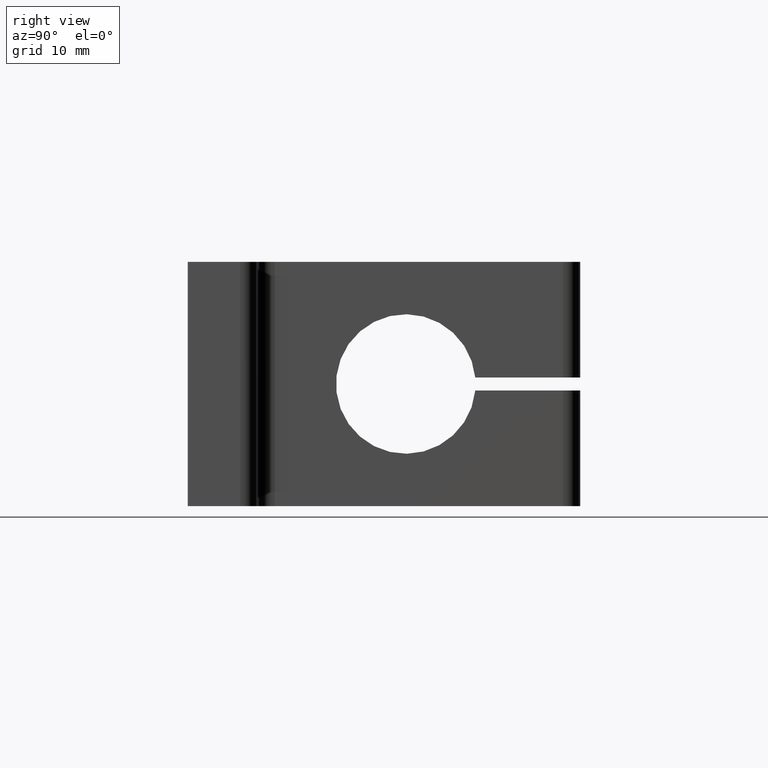
[diagram: clean part render]
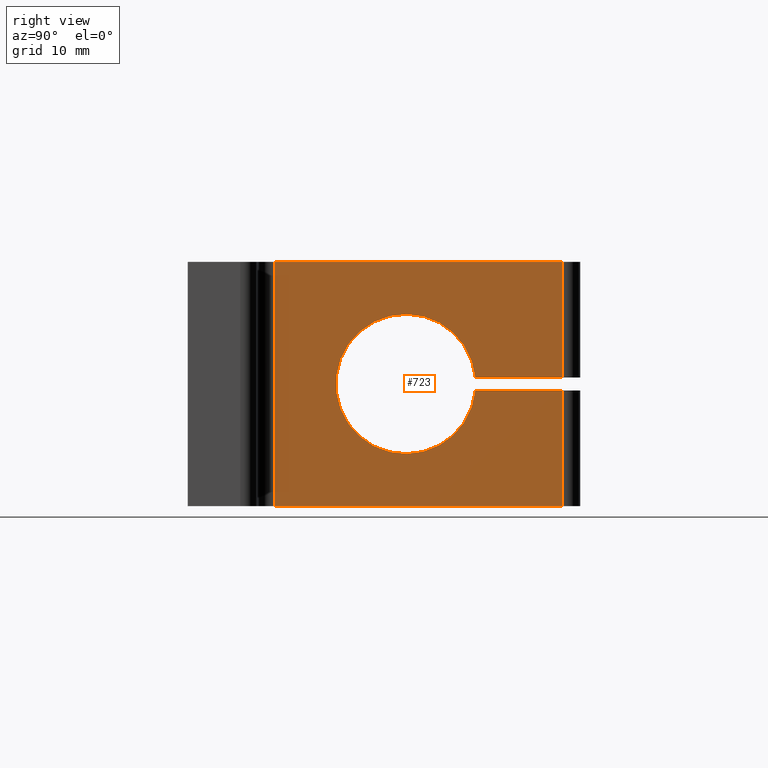
[diagram: same view with one face highlighted and labeled with its STEP entity id]
A machine part, right view. The second image highlights one B-rep face of the part: STEP entity #723.
In plain terms, the highlighted planar face has unit normal (-1, -0, 0).
Its self-contained STEP definition (entity closure, byte-faithful):
#6 = CARTESIAN_POINT ( 'NONE',  ( -17.50000000000000000, 32.96476616103699100, -13.25000000000000000 ) ) ;
#18 = CARTESIAN_POINT ( 'NONE',  ( -17.49999999999999600, 9.999999999999987600, -28.00000000000000000 ) ) ;
#26 = DIRECTION ( 'NONE',  ( 0.0000000000000000000, 1.000000000000000000, 0.0000000000000000000 ) ) ;
#37 = CARTESIAN_POINT ( 'NONE',  ( -17.50000000000000000, 44.99999999999999300, -28.00000000000000000 ) ) ;
#49 = DIRECTION ( 'NONE',  ( 9.376883653928687400E-017, -1.000000000000000000, 0.0000000000000000000 ) ) ;
#74 = CARTESIAN_POINT ( 'NONE',  ( -17.50000000000000000, 43.00000000000000000, -14.74999999999999800 ) ) ;
#84 = DIRECTION ( 'NONE',  ( 9.376883653928687400E-017, -1.000000000000000000, 0.0000000000000000000 ) ) ;
#95 = DIRECTION ( 'NONE',  ( 0.0000000000000000000, 0.0000000000000000000, 1.000000000000000000 ) ) ;
#98 = CARTESIAN_POINT ( 'NONE',  ( -17.50000000000000000, 43.00000000000000000, -28.00000000000000000 ) ) ;
#103 = DIRECTION ( 'NONE',  ( 9.376883653928687400E-017, -1.000000000000000000, 0.0000000000000000000 ) ) ;
#108 = PLANE ( 'NONE',  #561 ) ;
#110 = CARTESIAN_POINT ( 'NONE',  ( -17.50000000000000000, 44.99999999999999300, -28.00000000000000000 ) ) ;
#137 = CARTESIAN_POINT ( 'NONE',  ( -17.50000000000000000, 43.00000000000000000, 0.0000000000000000000 ) ) ;
#168 = VERTEX_POINT ( 'NONE', #6 ) ;
#177 = VERTEX_POINT ( 'NONE', #74 ) ;
#179 = VERTEX_POINT ( 'NONE', #137 ) ;
#189 = CARTESIAN_POINT ( 'NONE',  ( -17.49999999999999600, 9.999999999999987600, 0.0000000000000000000 ) ) ;
#192 = VERTEX_POINT ( 'NONE', #225 ) ;
#225 = CARTESIAN_POINT ( 'NONE',  ( -17.50000000000000000, 43.00000000000000000, -13.24999999999999800 ) ) ;
#231 = VERTEX_POINT ( 'NONE', #233 ) ;
#233 = CARTESIAN_POINT ( 'NONE',  ( -17.50000000000000000, 32.96476616103699100, -14.74999999999999800 ) ) ;
#258 = DIRECTION ( 'NONE',  ( -1.000000000000000000, -9.376883653928687400E-017, 0.0000000000000000000 ) ) ;
#262 = VERTEX_POINT ( 'NONE', #18 ) ;
#268 = CARTESIAN_POINT ( 'NONE',  ( -17.50000000000000000, 43.00000000000000000, -14.74999999999999800 ) ) ;
#278 = DIRECTION ( 'NONE',  ( 0.0000000000000000000, -1.000000000000000000, -1.303806837179633300E-016 ) ) ;
#288 = CARTESIAN_POINT ( 'NONE',  ( -17.50000000000000000, 45.00000000000000700, -14.74999999999999800 ) ) ;
#310 = CARTESIAN_POINT ( 'NONE',  ( -17.50000000000000000, 45.00000000000000700, -13.24999999999999800 ) ) ;
#365 = DIRECTION ( 'NONE',  ( 0.0000000000000000000, 0.0000000000000000000, 1.000000000000000000 ) ) ;
#371 = VERTEX_POINT ( 'NONE', #98 ) ;
#372 = VERTEX_POINT ( 'NONE', #189 ) ;
#376 = CARTESIAN_POINT ( 'NONE',  ( -17.49999999999999600, 9.999999999999991100, -28.00000000000000000 ) ) ;
#384 = CARTESIAN_POINT ( 'NONE',  ( -17.50000000000000000, 43.00000000000000000, 0.0000000000000000000 ) ) ;
#400 = DIRECTION ( 'NONE',  ( -0.0000000000000000000, 1.000000000000000000, 1.303806837179633300E-016 ) ) ;
#433 = CARTESIAN_POINT ( 'NONE',  ( -17.50000000000000000, 44.99999999999999300, 0.0000000000000000000 ) ) ;
#435 = DIRECTION ( 'NONE',  ( -0.0000000000000000000, -0.0000000000000000000, -1.000000000000000000 ) ) ;
#464 = DIRECTION ( 'NONE',  ( 1.000000000000000000, 9.376883653928687400E-017, 0.0000000000000000000 ) ) ;
#466 = CARTESIAN_POINT ( 'NONE',  ( -17.50000000000000000, 24.99999999999998900, -14.00000000000000000 ) ) ;
#561 = AXIS2_PLACEMENT_3D ( 'NONE', #37, #258, #103 ) ;
#618 = AXIS2_PLACEMENT_3D ( 'NONE', #466, #464, #26 ) ;
#641 = EDGE_CURVE ( 'NONE', #371, #262, #890, .T. ) ;
#655 = ORIENTED_EDGE ( 'NONE', *, *, #1157, .F. ) ;
#659 = ORIENTED_EDGE ( 'NONE', *, *, #1158, .F. ) ;
#661 = ORIENTED_EDGE ( 'NONE', *, *, #1147, .T. ) ;
#671 = ORIENTED_EDGE ( 'NONE', *, *, #1149, .T. ) ;
#672 = ORIENTED_EDGE ( 'NONE', *, *, #1153, .T. ) ;
#678 = ORIENTED_EDGE ( 'NONE', *, *, #641, .F. ) ;
#685 = ORIENTED_EDGE ( 'NONE', *, *, #1075, .F. ) ;
#693 = ORIENTED_EDGE ( 'NONE', *, *, #1140, .T. ) ;
#723 = ADVANCED_FACE ( 'NONE', ( #832 ), #108, .F. ) ;
#793 = VECTOR ( 'NONE', #400, 1000.000000000000000 ) ;
#794 = CIRCLE ( 'NONE', #618, 8.000000000000003600 ) ;
#795 = LINE ( 'NONE', #288, #793 ) ;
#810 = VECTOR ( 'NONE', #365, 1000.000000000000000 ) ;
#811 = LINE ( 'NONE', #268, #810 ) ;
#832 = FACE_OUTER_BOUND ( 'NONE', #977, .T. ) ;
#858 = VECTOR ( 'NONE', #278, 1000.000000000000000 ) ;
#859 = LINE ( 'NONE', #310, #858 ) ;
#882 = VECTOR ( 'NONE', #84, 1000.000000000000000 ) ;
#890 = LINE ( 'NONE', #110, #882 ) ;
#977 = EDGE_LOOP ( 'NONE', ( #661, #671, #678, #672, #659, #655, #685, #693 ) ) ;
#1010 = LINE ( 'NONE', #376, #1035 ) ;
#1021 = VECTOR ( 'NONE', #95, 1000.000000000000000 ) ;
#1025 = VECTOR ( 'NONE', #49, 1000.000000000000000 ) ;
#1026 = LINE ( 'NONE', #433, #1025 ) ;
#1035 = VECTOR ( 'NONE', #435, 1000.000000000000000 ) ;
#1043 = LINE ( 'NONE', #384, #1021 ) ;
#1075 = EDGE_CURVE ( 'NONE', #192, #168, #859, .T. ) ;
#1140 = EDGE_CURVE ( 'NONE', #192, #179, #1043, .T. ) ;
#1147 = EDGE_CURVE ( 'NONE', #179, #372, #1026, .T. ) ;
#1149 = EDGE_CURVE ( 'NONE', #372, #262, #1010, .T. ) ;
#1153 = EDGE_CURVE ( 'NONE', #371, #177, #811, .T. ) ;
#1157 = EDGE_CURVE ( 'NONE', #168, #231, #794, .T. ) ;
#1158 = EDGE_CURVE ( 'NONE', #231, #177, #795, .T. ) ;